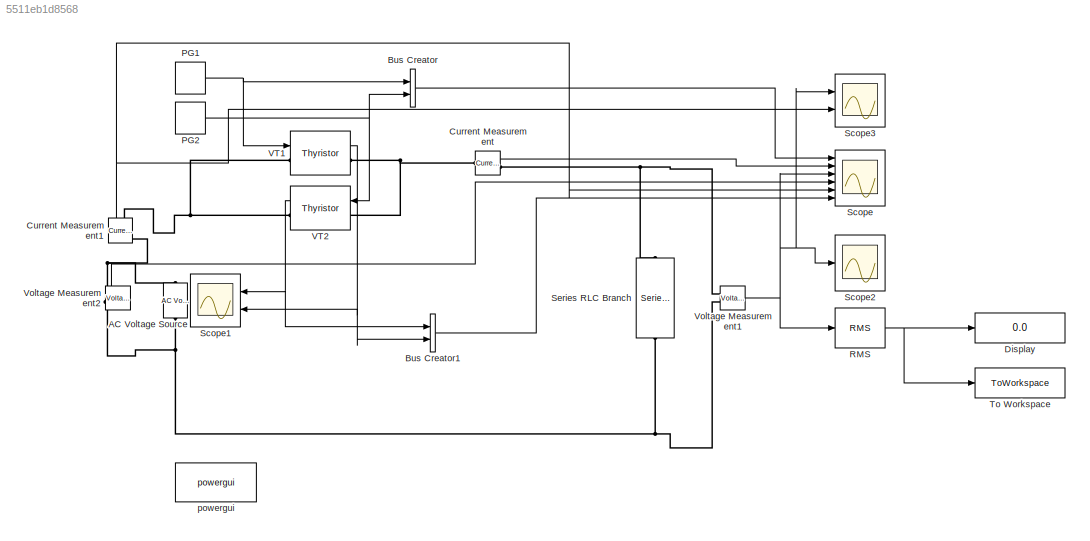
MODEL slx_5511eb1d8568
KIND model
CONFIG AbsTol = auto
CONFIG EnableMultiTasking = off
CONFIG FixedStep = auto
CONFIG MaxStep = auto
CONFIG MinStep = auto
CONFIG RelTol = 1e-3
CONFIG SampleTimeConstraint = Unconstrained
CONFIG Solver = VariableStepAuto
CONFIG SolverName = VariableStepAuto
CONFIG StartTime = 0.0
CONFIG StopTime = 0.08
BLOCK [Reference] AC Voltage Source  REF=powerlib/Electrical
Sources/AC Voltage Source
  Ports = [0, 0, 0, 0, 0, 1, 1]
  SourceBlock = powerlib/Electrical\nSources/AC Voltage Source
  SourceProductBaseCode = PS
  SourceProductName = Simscape Electrical
  SourceType = AC Voltage Source
BLOCK [BusCreator] Bus Creator
  DisplayOption = bar
  InheritFromInputs = on
  Inputs = 2
  Ports = [2, 1]
BLOCK [BusCreator] Bus Creator1
  DisplayOption = bar
  InheritFromInputs = on
  Inputs = 2
  Ports = [2, 1]
BLOCK [Reference] Current Measurement  REF=powerlib/Measurements/Current Measurement
  Ports = [0, 1, 0, 0, 0, 1, 1]
  SourceBlock = powerlib/Measurements/Current Measurement
  SourceProductBaseCode = PS
  SourceProductName = Simscape Electrical
  SourceType = Current Measurement
  UserDataPersistent = on
BLOCK [Reference] Current Measurement1  REF=powerlib/Measurements/Current Measurement
  Ports = [0, 1, 0, 0, 0, 1, 1]
  SourceBlock = powerlib/Measurements/Current Measurement
  SourceProductBaseCode = PS
  SourceProductName = Simscape Electrical
  SourceType = Current Measurement
  UserDataPersistent = on
BLOCK [Display] Display
  Decimation = 1
  Ports = [1]
BLOCK [DiscretePulseGenerator] PG1
  Period = 0.02
  PhaseDelay = (90/360)*0.02
  Ports = [0, 1]
  PulseType = Time based
  PulseWidth = 50
BLOCK [DiscretePulseGenerator] PG2
  Period = 0.02
  PhaseDelay = (90/360)*0.02+0.01
  Ports = [0, 1]
  PulseType = Time based
  PulseWidth = 50
BLOCK [Reference] RMS  REF=powerlib_meascontrol/Measurements/RMS
  Ports = [1, 1]
  SourceBlock = powerlib_meascontrol/Measurements/RMS
  SourceProductBaseCode = PS
  SourceProductName = Simscape Electrical
  SourceType = RMS
BLOCK [Scope] Scope
  Floating = off
  NumInputPorts = 6
  Ports = [6]
  ScopeSpecificationString = Simulink.scopes.TimeScopeBlockCfg('CurrentConfiguration', extmgr.ConfigurationSet(extmgr.Configuration('Core','General UI',true),extmgr.Configuration('Core','Source UI',true),extmgr.Configuration('Sources','WiredSimulink',true,'DataLogging',true,'DataLoggingVariableName','output_signal','DataLoggingSaveFormat','StructureWithTime'),extmgr.Configuration('Visuals','Time Domain',true,'SerializedDispla...<+5012ch>
BLOCK [Scope] Scope1
  Floating = off
  NumInputPorts = 2
  Ports = [2]
  ScopeSpecificationString = Simulink.scopes.TimeScopeBlockCfg('CurrentConfiguration', extmgr.ConfigurationSet(extmgr.Configuration('Core','General UI',true),extmgr.Configuration('Core','Source UI',true),extmgr.Configuration('Sources','WiredSimulink',true,'DataLoggingVariableName','ScopeData1'),extmgr.Configuration('Visuals','Time Domain',true,'SerializedDisplays',{struct('MinYLimReal','-10','MaxYLimReal','10','YLabelReal',''...<+2102ch>
BLOCK [Scope] Scope2
  Floating = off
  NumInputPorts = 1
  Ports = [1]
  ScopeSpecificationString = Simulink.scopes.TimeScopeBlockCfg('CurrentConfiguration', extmgr.ConfigurationSet(extmgr.Configuration('Core','General UI',true),extmgr.Configuration('Core','Source UI',true),extmgr.Configuration('Sources','WiredSimulink',true,'DataLoggingVariableName','output_voltage','DataLogging',true,'DataLoggingDecimateData',true,'DataLoggingSaveFormat','StructureWithTime'),extmgr.Configuration('Visuals','Tim...<+2100ch>
BLOCK [Scope] Scope3
  Floating = off
  NumInputPorts = 2
  Ports = [2]
  ScopeSpecificationString = Simulink.scopes.TimeScopeBlockCfg('CurrentConfiguration', extmgr.ConfigurationSet(extmgr.Configuration('Core','General UI',true),extmgr.Configuration('Core','Source UI',true),extmgr.Configuration('Sources','WiredSimulink',true,'DataLoggingVariableName','ScopeData1'),extmgr.Configuration('Visuals','Time Domain',true,'SerializedDisplays',{struct('MinYLimReal','-387.90873','MaxYLimReal','387.90873','...<+2010ch>
BLOCK [Reference] Series RLC Branch  REF=powerlib/Elements/Series RLC Branch
  Ports = [0, 0, 0, 0, 0, 1, 1]
  SourceBlock = powerlib/Elements/Series RLC Branch
  SourceProductBaseCode = PS
  SourceProductName = Simscape Electrical
  SourceType = Series RLC Branch
BLOCK [ToWorkspace] To Workspace
  FixptAsFi = on
  MaxDataPoints = inf
  Ports = [1]
  SampleTime = -1
  Save2DSignal = 2-D array (concatenate along first dimension)
  VariableName = RMS_output_voltage
BLOCK [Reference] VT1  REF=powerlib/Power
Electronics/Thyristor
  Ports = [1, 1, 0, 0, 0, 1, 1]
  SourceBlock = powerlib/Power\nElectronics/Thyristor
  SourceProductBaseCode = PS
  SourceProductName = Simscape Electrical
  SourceType = Thyristor
BLOCK [Reference] VT2  REF=powerlib/Power
Electronics/Thyristor
  Ports = [1, 1, 0, 0, 0, 1, 1]
  SourceBlock = powerlib/Power\nElectronics/Thyristor
  SourceProductBaseCode = PS
  SourceProductName = Simscape Electrical
  SourceType = Thyristor
BLOCK [Reference] Voltage Measurement1  REF=powerlib/Measurements/Voltage Measurement
  Ports = [0, 1, 0, 0, 0, 2]
  SourceBlock = powerlib/Measurements/Voltage Measurement
  SourceProductBaseCode = PS
  SourceProductName = Simscape Electrical
  SourceType = Voltage Measurement
  UserDataPersistent = on
BLOCK [Reference] Voltage Measurement2  REF=powerlib/Measurements/Voltage Measurement
  Ports = [0, 1, 0, 0, 0, 2]
  SourceBlock = powerlib/Measurements/Voltage Measurement
  SourceProductBaseCode = PS
  SourceProductName = Simscape Electrical
  SourceType = Voltage Measurement
  UserDataPersistent = on
BLOCK [Reference] powergui  REF=powerlib/powergui
  Ports = []
  Priority = 1
  SourceBlock = powerlib/powergui
  SourceProductBaseCode = PS
  SourceProductName = Simscape Electrical
  SourceType = PSB option menu block
LINE Bus Creator1:1 -> Scope:6
LINE Bus Creator:1 -> Scope:1
NET Current Measurement1:1 -> Scope3:2, Scope:5
LINE Current Measurement:1 -> Scope:2
NET PG1:1 -> Bus Creator:1, VT1:1
NET PG2:1 -> Bus Creator:2, VT2:1
NET RMS:1 -> Display:1, To Workspace:1
NET VT1:1 -> Bus Creator1:2, Scope1:2
NET VT2:1 -> Bus Creator1:1, Scope1:1
NET Voltage Measurement1:1 -> RMS:1, Scope2:1, Scope3:1, Scope:3
LINE Voltage Measurement2:1 -> Scope:4
PNET net1: AC Voltage Source:LConn1 -- Series RLC Branch:RConn1 -- Voltage Measurement1:LConn2 -- Voltage Measurement2:LConn1
PNET net2: AC Voltage Source:RConn1 -- Current Measurement1:LConn1 -- Voltage Measurement2:LConn2
PNET net3: Current Measurement1:RConn1 -- VT1:LConn1 -- VT2:RConn1
PNET net4: Current Measurement:LConn1 -- VT1:RConn1 -- VT2:LConn1
PNET net5: Current Measurement:RConn1 -- Series RLC Branch:LConn1 -- Voltage Measurement1:LConn1
note: NET lines group one-source signal fan-out (src -> all destinations, sorted); 1:1 wires keep LINE; PNET lines group multi-terminal physical nets as a canonical sorted terminal list (undirected conserving connections); 2-terminal nets keep the pairwise PLINE form
